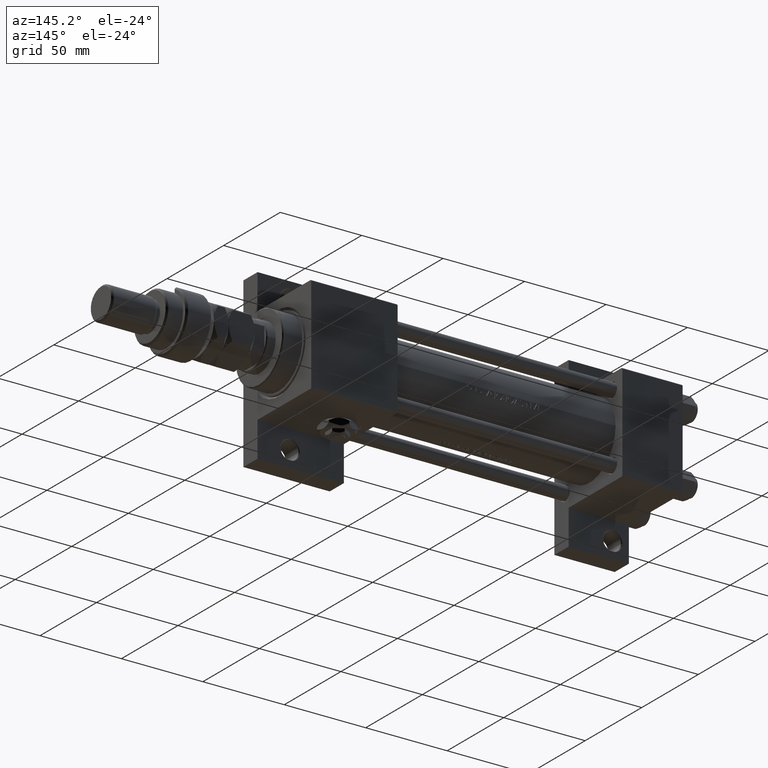
[diagram: clean part render]
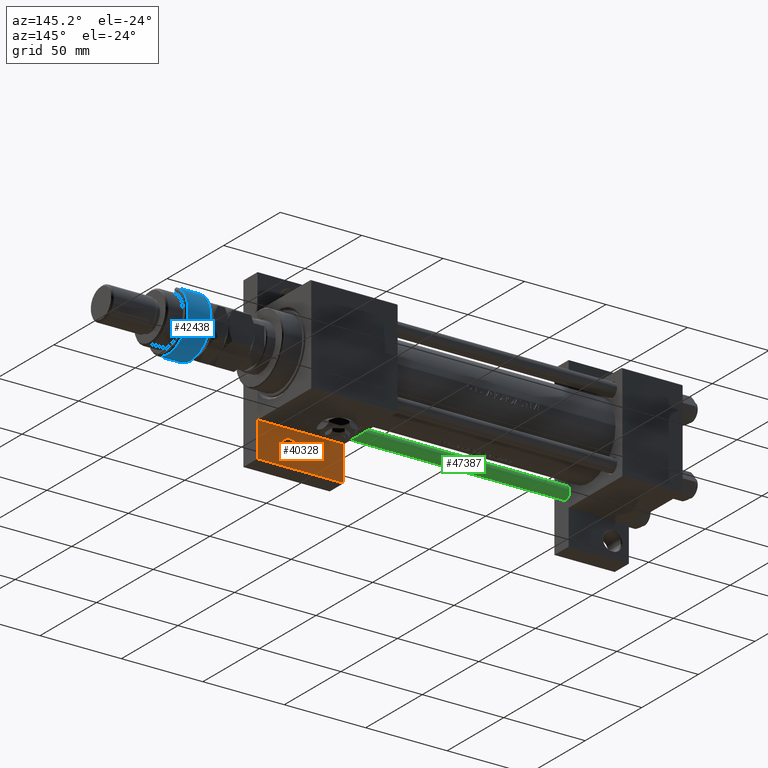
[diagram: same view with three faces highlighted in distinct colors, each labeled with its STEP entity id]
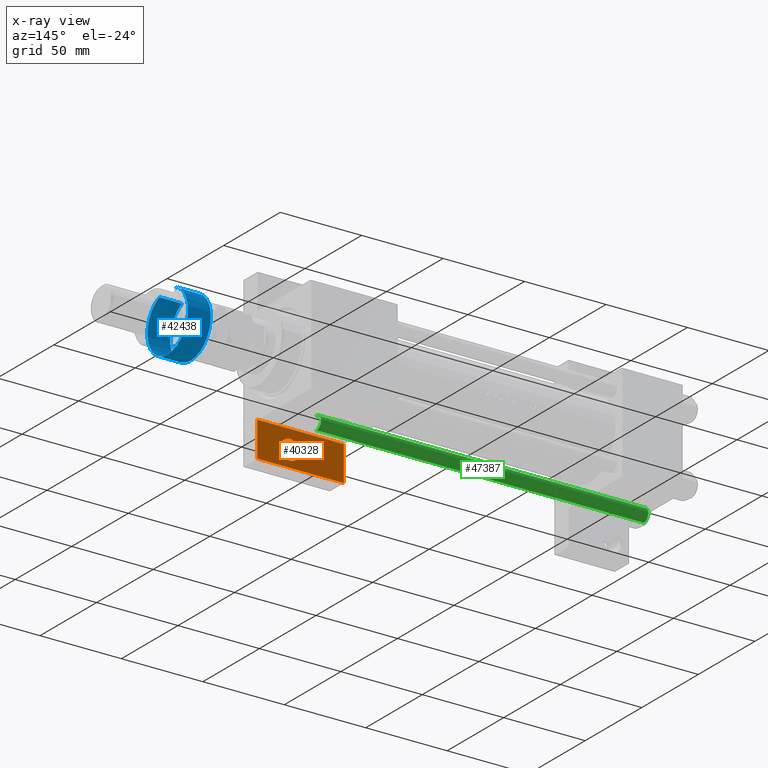
[diagram: x-ray of the same camera — body ghosted, the three highlighted faces saturated]
A machine part, auxiliary view with three faces highlighted in distinct colors.
The next image is the same camera in x-ray (body ghosted, the three faces saturated) — at least one of them is partly hidden behind the body in this view.
Their STEP definitions:

[orange] entity #40328 — the highlighted planar face has unit normal (0, 1, 0).
#144 = ORIENTED_EDGE ( 'NONE', *, *, #21882, .F. ) ;
#2717 = CARTESIAN_POINT ( 'NONE',  ( 175.0000000000000284, 51.49999999999998579, -17.49999999999999645 ) ) ;
#4086 = VERTEX_POINT ( 'NONE', #51407 ) ;
#4501 = CARTESIAN_POINT ( 'NONE',  ( 175.0000000000000284, 30.00000000000000000, -17.49999999999998224 ) ) ;
#6995 = AXIS2_PLACEMENT_3D ( 'NONE', #7019, #36017, #28115 ) ;
#7019 = CARTESIAN_POINT ( 'NONE',  ( 208.0000000000000284, 41.49999999999999289, -17.49999999999999645 ) ) ;
#8385 = CIRCLE ( 'NONE', #39586, 5.999499999999962974 ) ;
#8456 = VECTOR ( 'NONE', #22996, 1000.000000000000000 ) ;
#8624 = LINE ( 'NONE', #12861, #45331 ) ;
#10101 = DIRECTION ( 'NONE',  ( 1.000000000000000000, -3.927675794664467405E-16, 0.000000000000000000 ) ) ;
#11097 = EDGE_CURVE ( 'NONE', #27896, #25392, #8624, .T. ) ;
#11786 = CARTESIAN_POINT ( 'NONE',  ( 202.0005000000000450, 41.49999999999999289, -17.49999999999999645 ) ) ;
#12861 = CARTESIAN_POINT ( 'NONE',  ( 175.0000000000000284, 51.49999999999998579, -17.49999999999999645 ) ) ;
#13359 = CARTESIAN_POINT ( 'NONE',  ( 208.0000000000000284, 41.49999999999999289, -17.49999999999999645 ) ) ;
#14107 = CARTESIAN_POINT ( 'NONE',  ( 0.000000000000000000, 0.000000000000000000, -17.49999999999999645 ) ) ;
#15279 = DIRECTION ( 'NONE',  ( 0.000000000000000000, -1.000000000000000000, 0.000000000000000000 ) ) ;
#16190 = EDGE_LOOP ( 'NONE', ( #36245, #31776, #38033, #144 ) ) ;
#16968 = EDGE_CURVE ( 'NONE', #32517, #27896, #47003, .T. ) ;
#17570 = DIRECTION ( 'NONE',  ( 1.000000000000000000, 0.000000000000000000, -0.000000000000000000 ) ) ;
#18584 = ORIENTED_EDGE ( 'NONE', *, *, #34112, .T. ) ;
#18760 = CARTESIAN_POINT ( 'NONE',  ( 228.0000000000000284, 29.99999999999997513, -17.49999999999999645 ) ) ;
#21333 = CIRCLE ( 'NONE', #6995, 5.999499999999962974 ) ;
#21882 = EDGE_CURVE ( 'NONE', #25392, #31085, #21988, .T. ) ;
#21988 = LINE ( 'NONE', #2717, #46272 ) ;
#22283 = DIRECTION ( 'NONE',  ( 0.000000000000000000, 0.000000000000000000, 1.000000000000000000 ) ) ;
#22996 = DIRECTION ( 'NONE',  ( -1.000000000000000000, 4.582288427108545963E-16, -0.000000000000000000 ) ) ;
#23561 = VERTEX_POINT ( 'NONE', #11786 ) ;
#23955 = LINE ( 'NONE', #47208, #49202 ) ;
#25392 = VERTEX_POINT ( 'NONE', #50322 ) ;
#26502 = PLANE ( 'NONE',  #45005 ) ;
#27498 = EDGE_CURVE ( 'NONE', #4086, #23561, #8385, .T. ) ;
#27896 = VERTEX_POINT ( 'NONE', #4501 ) ;
#28115 = DIRECTION ( 'NONE',  ( 1.000000000000000000, 0.000000000000000000, 0.000000000000000000 ) ) ;
#28928 = DIRECTION ( 'NONE',  ( -0.000000000000000000, -0.000000000000000000, -1.000000000000000000 ) ) ;
#31085 = VERTEX_POINT ( 'NONE', #31624 ) ;
#31624 = CARTESIAN_POINT ( 'NONE',  ( 228.0000000000000284, 51.49999999999996447, -17.49999999999999645 ) ) ;
#31776 = ORIENTED_EDGE ( 'NONE', *, *, #16968, .F. ) ;
#32517 = VERTEX_POINT ( 'NONE', #18760 ) ;
#33920 = DIRECTION ( 'NONE',  ( 1.000000000000000000, 0.000000000000000000, 0.000000000000000000 ) ) ;
#34112 = EDGE_CURVE ( 'NONE', #23561, #4086, #21333, .T. ) ;
#36017 = DIRECTION ( 'NONE',  ( -0.000000000000000000, -0.000000000000000000, -1.000000000000000000 ) ) ;
#36245 = ORIENTED_EDGE ( 'NONE', *, *, #11097, .F. ) ;
#37640 = DIRECTION ( 'NONE',  ( -0.000000000000000000, 1.000000000000000000, -0.000000000000000000 ) ) ;
#38033 = ORIENTED_EDGE ( 'NONE', *, *, #39798, .F. ) ;
#39586 = AXIS2_PLACEMENT_3D ( 'NONE', #13359, #28928, #33920 ) ;
#39798 = EDGE_CURVE ( 'NONE', #31085, #32517, #23955, .T. ) ;
#40328 = ADVANCED_FACE ( 'NONE', ( #49750, #42083 ), #26502, .T. ) ;
#42083 = FACE_OUTER_BOUND ( 'NONE', #16190, .T. ) ;
#43047 = CARTESIAN_POINT ( 'NONE',  ( 175.0000000000000284, 30.00000000000000000, -17.49999999999999645 ) ) ;
#43624 = EDGE_LOOP ( 'NONE', ( #51521, #18584 ) ) ;
#45005 = AXIS2_PLACEMENT_3D ( 'NONE', #14107, #22283, #17570 ) ;
#45331 = VECTOR ( 'NONE', #37640, 1000.000000000000000 ) ;
#46272 = VECTOR ( 'NONE', #10101, 1000.000000000000000 ) ;
#47003 = LINE ( 'NONE', #43047, #8456 ) ;
#47208 = CARTESIAN_POINT ( 'NONE',  ( 228.0000000000000284, 51.49999999999996447, -17.49999999999999645 ) ) ;
#49202 = VECTOR ( 'NONE', #15279, 1000.000000000000000 ) ;
#49750 = FACE_BOUND ( 'NONE', #43624, .T. ) ;
#50322 = CARTESIAN_POINT ( 'NONE',  ( 175.0000000000000284, 51.49999999999998579, -17.49999999999999645 ) ) ;
#51407 = CARTESIAN_POINT ( 'NONE',  ( 213.9994999999999834, 41.49999999999999289, -17.49999999999999645 ) ) ;
#51521 = ORIENTED_EDGE ( 'NONE', *, *, #27498, .T. ) ;

[blue] entity #42438 — the highlighted cylindrical surface (edge-blend (fillet) strip) has radius 18 mm, axis along (-1, -0, 0).
#660 = VERTEX_POINT ( 'NONE', #11599 ) ;
#1399 = DIRECTION ( 'NONE',  ( -0.000000000000000000, -0.000000000000000000, -1.000000000000000000 ) ) ;
#2459 = CARTESIAN_POINT ( 'NONE',  ( 18.00000000000000000, 0.000000000000000000, 1.000000000000011324 ) ) ;
#3798 = VECTOR ( 'NONE', #1399, 1000.000000000000000 ) ;
#4034 = AXIS2_PLACEMENT_3D ( 'NONE', #27803, #23842, #11962 ) ;
#4407 = ORIENTED_EDGE ( 'NONE', *, *, #42193, .T. ) ;
#8149 = ORIENTED_EDGE ( 'NONE', *, *, #43563, .T. ) ;
#10318 = ORIENTED_EDGE ( 'NONE', *, *, #15992, .T. ) ;
#11599 = CARTESIAN_POINT ( 'NONE',  ( -16.36306817195357155, -7.500000000000000000, 1.000000000000011324 ) ) ;
#11962 = DIRECTION ( 'NONE',  ( 1.000000000000000000, 0.000000000000000000, 0.000000000000000000 ) ) ;
#14180 = DIRECTION ( 'NONE',  ( -0.000000000000000000, -0.000000000000000000, 1.000000000000000000 ) ) ;
#15992 = EDGE_CURVE ( 'NONE', #23000, #19723, #33613, .T. ) ;
#16373 = DIRECTION ( 'NONE',  ( -1.000000000000000000, 0.000000000000000000, 0.000000000000000000 ) ) ;
#17379 = CARTESIAN_POINT ( 'NONE',  ( 0.000000000000000000, 0.000000000000000000, 1.000000000000011324 ) ) ;
#17731 = CARTESIAN_POINT ( 'NONE',  ( -16.36306817195357155, 7.500000000000000000, 14.99999999999999645 ) ) ;
#18568 = EDGE_CURVE ( 'NONE', #22658, #23625, #23409, .T. ) ;
#19723 = VERTEX_POINT ( 'NONE', #21666 ) ;
#20094 = LINE ( 'NONE', #32215, #23877 ) ;
#20751 = DIRECTION ( 'NONE',  ( 0.000000000000000000, 0.000000000000000000, -1.000000000000000000 ) ) ;
#21666 = CARTESIAN_POINT ( 'NONE',  ( -16.36306817195357155, -7.500000000000000000, 14.99999999999999645 ) ) ;
#22654 = AXIS2_PLACEMENT_3D ( 'NONE', #44757, #20751, #32608 ) ;
#22658 = VERTEX_POINT ( 'NONE', #2459 ) ;
#23000 = VERTEX_POINT ( 'NONE', #17731 ) ;
#23409 = CIRCLE ( 'NONE', #4034, 18.00000000000000000 ) ;
#23625 = VERTEX_POINT ( 'NONE', #36567 ) ;
#23842 = DIRECTION ( 'NONE',  ( -0.000000000000000000, -0.000000000000000000, 1.000000000000000000 ) ) ;
#23877 = VECTOR ( 'NONE', #24843, 1000.000000000000000 ) ;
#24843 = DIRECTION ( 'NONE',  ( -0.000000000000000000, -0.000000000000000000, -1.000000000000000000 ) ) ;
#26704 = LINE ( 'NONE', #42525, #3798 ) ;
#27803 = CARTESIAN_POINT ( 'NONE',  ( 0.000000000000000000, 0.000000000000000000, 1.000000000000011324 ) ) ;
#28237 = DIRECTION ( 'NONE',  ( -0.000000000000000000, -0.000000000000000000, -1.000000000000000000 ) ) ;
#30370 = EDGE_LOOP ( 'NONE', ( #46945, #10318, #4407, #8149, #35658 ) ) ;
#31618 = AXIS2_PLACEMENT_3D ( 'NONE', #33236, #28237, #16373 ) ;
#32215 = CARTESIAN_POINT ( 'NONE',  ( -16.36306817195357155, 7.500000000000000000, 17.50000000000000000 ) ) ;
#32608 = DIRECTION ( 'NONE',  ( 1.000000000000000000, 0.000000000000000000, 0.000000000000000000 ) ) ;
#33236 = CARTESIAN_POINT ( 'NONE',  ( 0.000000000000000000, 0.000000000000000000, 16.00000000000000000 ) ) ;
#33442 = DIRECTION ( 'NONE',  ( 1.000000000000000000, 0.000000000000000000, 0.000000000000000000 ) ) ;
#33613 = CIRCLE ( 'NONE', #22654, 18.00000000000000000 ) ;
#35552 = EDGE_CURVE ( 'NONE', #23000, #23625, #20094, .T. ) ;
#35658 = ORIENTED_EDGE ( 'NONE', *, *, #18568, .T. ) ;
#36567 = CARTESIAN_POINT ( 'NONE',  ( -16.36306817195357155, 7.500000000000000000, 1.000000000000011324 ) ) ;
#37544 = AXIS2_PLACEMENT_3D ( 'NONE', #17379, #14180, #33442 ) ;
#42193 = EDGE_CURVE ( 'NONE', #19723, #660, #26704, .T. ) ;
#42438 = ADVANCED_FACE ( 'NONE', ( #49352 ), #45124, .T. ) ;
#42525 = CARTESIAN_POINT ( 'NONE',  ( -16.36306817195357155, -7.500000000000000000, 17.50000000000000000 ) ) ;
#43563 = EDGE_CURVE ( 'NONE', #660, #22658, #50215, .T. ) ;
#44757 = CARTESIAN_POINT ( 'NONE',  ( 0.000000000000000000, 0.000000000000000000, 14.99999999999999645 ) ) ;
#45124 = CYLINDRICAL_SURFACE ( 'NONE', #31618, 18.00000000000000000 ) ;
#46945 = ORIENTED_EDGE ( 'NONE', *, *, #35552, .F. ) ;
#49352 = FACE_OUTER_BOUND ( 'NONE', #30370, .T. ) ;
#50215 = CIRCLE ( 'NONE', #37544, 18.00000000000000000 ) ;

[green] entity #47387 — the highlighted cylindrical surface (edge-blend (fillet) strip) has radius 4 mm, axis along (-1, 0, 0).
#951 = CARTESIAN_POINT ( 'NONE',  ( 4.000000000000000000, 4.898587196589412829E-16, 201.5000000000000000 ) ) ;
#1185 = AXIS2_PLACEMENT_3D ( 'NONE', #41899, #25028, #5225 ) ;
#2541 = ORIENTED_EDGE ( 'NONE', *, *, #48651, .T. ) ;
#5225 = DIRECTION ( 'NONE',  ( 1.000000000000000000, 0.000000000000000000, 0.000000000000000000 ) ) ;
#6674 = ORIENTED_EDGE ( 'NONE', *, *, #36442, .T. ) ;
#7996 = VERTEX_POINT ( 'NONE', #10435 ) ;
#8773 = CIRCLE ( 'NONE', #1185, 4.000000000000000000 ) ;
#10435 = CARTESIAN_POINT ( 'NONE',  ( 4.000000000000000000, 4.898587196589412829E-16, 0.5000000000000004441 ) ) ;
#11837 = EDGE_CURVE ( 'NONE', #21885, #49024, #15778, .T. ) ;
#12335 = CARTESIAN_POINT ( 'NONE',  ( -4.000000000000000000, 0.000000000000000000, 202.0000000000000000 ) ) ;
#14148 = VECTOR ( 'NONE', #35810, 1000.000000000000000 ) ;
#14843 = CARTESIAN_POINT ( 'NONE',  ( -4.000000000000000000, 0.000000000000000000, 201.5000000000000000 ) ) ;
#15031 = AXIS2_PLACEMENT_3D ( 'NONE', #27810, #15169, #51570 ) ;
#15169 = DIRECTION ( 'NONE',  ( -0.000000000000000000, -0.000000000000000000, -1.000000000000000000 ) ) ;
#15778 = LINE ( 'NONE', #12335, #14148 ) ;
#17060 = CARTESIAN_POINT ( 'NONE',  ( 4.000000000000000000, 4.898587196589412829E-16, 202.0000000000000000 ) ) ;
#18299 = EDGE_LOOP ( 'NONE', ( #42119, #6674, #47639, #2541 ) ) ;
#20196 = VECTOR ( 'NONE', #45272, 1000.000000000000000 ) ;
#21885 = VERTEX_POINT ( 'NONE', #14843 ) ;
#21929 = DIRECTION ( 'NONE',  ( 1.000000000000000000, 0.000000000000000000, 0.000000000000000000 ) ) ;
#25028 = DIRECTION ( 'NONE',  ( 0.000000000000000000, 0.000000000000000000, -1.000000000000000000 ) ) ;
#26401 = CARTESIAN_POINT ( 'NONE',  ( 0.000000000000000000, 0.000000000000000000, 0.5000000000000004441 ) ) ;
#26515 = EDGE_CURVE ( 'NONE', #34384, #7996, #28920, .T. ) ;
#27810 = CARTESIAN_POINT ( 'NONE',  ( 0.000000000000000000, 0.000000000000000000, 202.0000000000000000 ) ) ;
#28920 = LINE ( 'NONE', #17060, #20196 ) ;
#31249 = FACE_OUTER_BOUND ( 'NONE', #18299, .T. ) ;
#33471 = AXIS2_PLACEMENT_3D ( 'NONE', #26401, #34823, #21929 ) ;
#34384 = VERTEX_POINT ( 'NONE', #951 ) ;
#34823 = DIRECTION ( 'NONE',  ( -0.000000000000000000, -0.000000000000000000, 1.000000000000000000 ) ) ;
#35276 = CARTESIAN_POINT ( 'NONE',  ( -4.000000000000000000, 0.000000000000000000, 0.5000000000000004441 ) ) ;
#35810 = DIRECTION ( 'NONE',  ( -0.000000000000000000, -0.000000000000000000, -1.000000000000000000 ) ) ;
#36442 = EDGE_CURVE ( 'NONE', #34384, #21885, #8773, .T. ) ;
#41899 = CARTESIAN_POINT ( 'NONE',  ( 0.000000000000000000, 0.000000000000000000, 201.5000000000000000 ) ) ;
#42119 = ORIENTED_EDGE ( 'NONE', *, *, #26515, .F. ) ;
#44441 = CIRCLE ( 'NONE', #33471, 4.000000000000000000 ) ;
#45272 = DIRECTION ( 'NONE',  ( -0.000000000000000000, -0.000000000000000000, -1.000000000000000000 ) ) ;
#47387 = ADVANCED_FACE ( 'NONE', ( #31249 ), #47855, .T. ) ;
#47639 = ORIENTED_EDGE ( 'NONE', *, *, #11837, .T. ) ;
#47855 = CYLINDRICAL_SURFACE ( 'NONE', #15031, 4.000000000000000000 ) ;
#48651 = EDGE_CURVE ( 'NONE', #49024, #7996, #44441, .T. ) ;
#49024 = VERTEX_POINT ( 'NONE', #35276 ) ;
#51570 = DIRECTION ( 'NONE',  ( -1.000000000000000000, 0.000000000000000000, 0.000000000000000000 ) ) ;